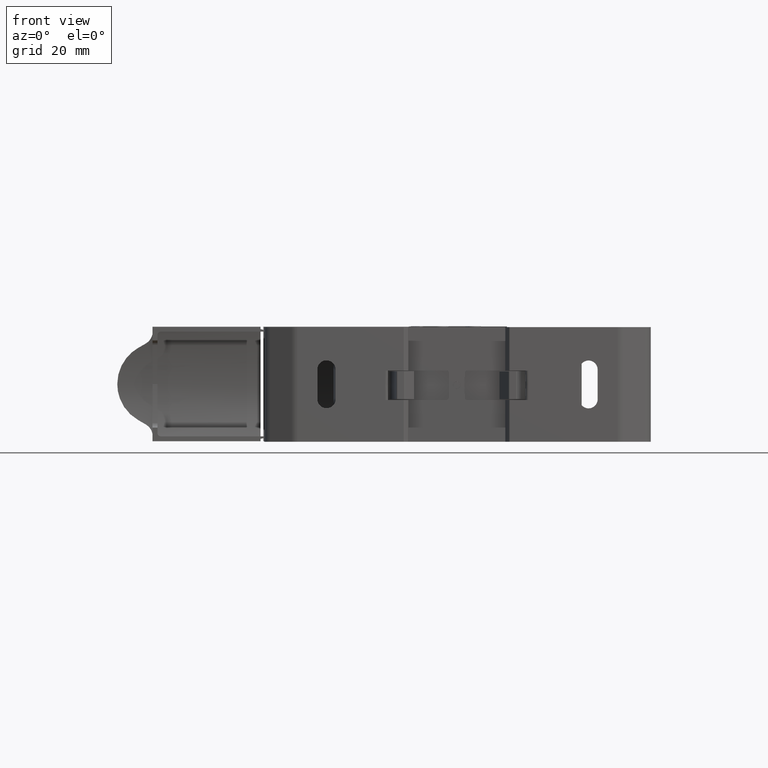
[diagram: clean part render]
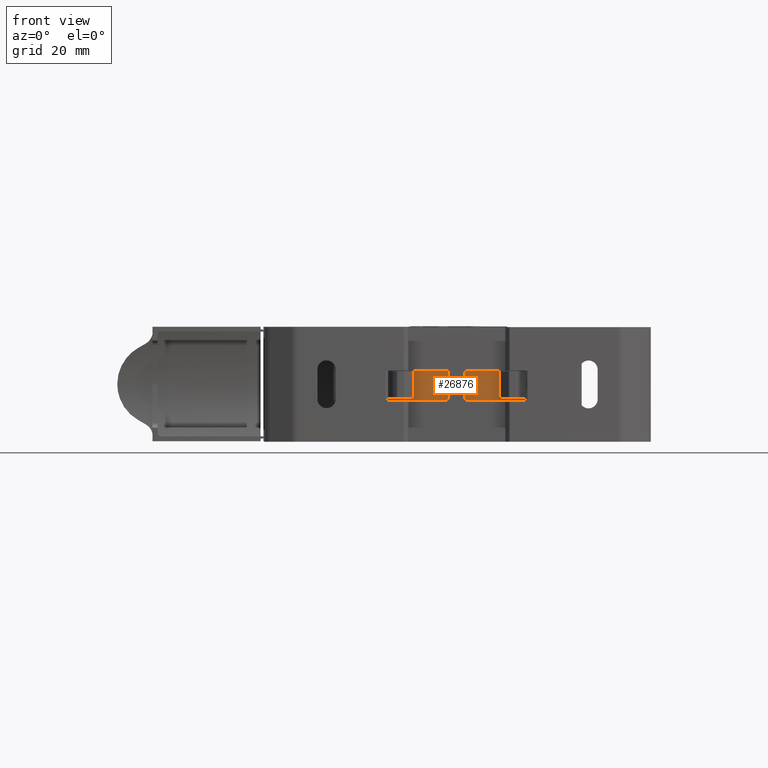
[diagram: same view with one face highlighted and labeled with its STEP entity id]
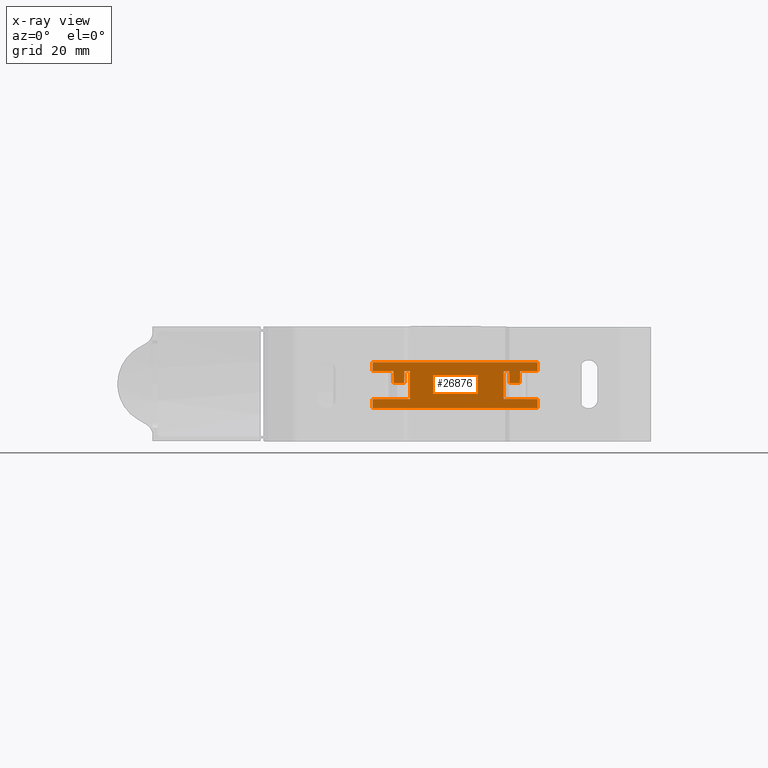
[diagram: x-ray of the same camera — body ghosted, the highlighted face saturated]
A machine part, front view. The second image highlights one B-rep face of the part: STEP entity #26876.
The next image is the same camera in x-ray: the body ghosted, the highlighted face saturated — about 0% of this face is hidden behind the body in this view.
In plain terms, the highlighted planar face has unit normal (0, -1, -0).
Its self-contained STEP definition (entity closure, byte-faithful):
#1604 = VERTEX_POINT ( 'NONE', #40636 ) ;
#1734 = VERTEX_POINT ( 'NONE', #40681 ) ;
#1831 = VERTEX_POINT ( 'NONE', #38840 ) ;
#1846 = VERTEX_POINT ( 'NONE', #38781 ) ;
#2927 = CARTESIAN_POINT ( 'NONE',  ( 16.26856924643300000, 228.7506682762943900, 8.179969599930517500 ) ) ;
#2939 = CARTESIAN_POINT ( 'NONE',  ( -19.65617512938784400, 228.7506682762941900, 13.92996959993122300 ) ) ;
#2982 = CARTESIAN_POINT ( 'NONE',  ( 18.21800889655793700, 228.7506682762939900, 18.17996959993069000 ) ) ;
#3000 = CARTESIAN_POINT ( 'NONE',  ( 22.16419527696145100, 228.7506682762939900, 18.17996959993060500 ) ) ;
#3011 = CARTESIAN_POINT ( 'NONE',  ( -23.52817748384615400, 228.7506682762939900, 18.17996959993131500 ) ) ;
#3013 = CARTESIAN_POINT ( 'NONE',  ( 16.26856924643376300, 228.7506682762940200, 18.17996959993070800 ) ) ;
#3014 = CARTESIAN_POINT ( 'NONE',  ( 18.29219292250292000, 228.7506682762941900, 13.92996959993064700 ) ) ;
#3016 = CARTESIAN_POINT ( 'NONE',  ( -31.04284253209268100, 228.7506682773584700, 18.17996959993134000 ) ) ;
#3018 = CARTESIAN_POINT ( 'NONE',  ( -17.63255145331891800, 228.7506682762940200, 18.17996959993226000 ) ) ;
#3021 = CARTESIAN_POINT ( 'NONE',  ( -31.04284253209253900, 228.7506682762943900, 8.179969599931254700 ) ) ;
#3026 = CARTESIAN_POINT ( 'NONE',  ( -19.58199110344282100, 228.7506682762939900, 18.17996959993172000 ) ) ;
#3038 = CARTESIAN_POINT ( 'NONE',  ( -23.45137653408830000, 228.7506682762941600, 13.92996959993076600 ) ) ;
#3055 = CARTESIAN_POINT ( 'NONE',  ( 22.08739432720364700, 228.7506682762941900, 13.92996959993064700 ) ) ;
#3065 = CARTESIAN_POINT ( 'NONE',  ( -17.63255145331843500, 228.7506682762943900, 8.179969599931128600 ) ) ;
#3076 = CARTESIAN_POINT ( 'NONE',  ( 28.49791972399197700, 228.7506682762939900, 18.17996959993055100 ) ) ;
#3097 = CARTESIAN_POINT ( 'NONE',  ( 28.49791972399212600, 228.7506682762943900, 8.179969599930512200 ) ) ;
#4371 = CARTESIAN_POINT ( 'NONE',  ( -1.221096978668467600, 228.7506682762941400, 14.30798594697086100 ) ) ;
#4372 = CARTESIAN_POINT ( 'NONE',  ( 0.3431198005696134400, 228.7506682762941900, 13.90462363238088600 ) ) ;
#4373 = CARTESIAN_POINT ( 'NONE',  ( 0.4729631892643708600, 228.7506682762941900, 13.65843273461871700 ) ) ;
#4375 = CARTESIAN_POINT ( 'NONE',  ( -1.871086038172491900, 228.7506682762941900, 13.56589729827615400 ) ) ;
#4376 = CARTESIAN_POINT ( 'NONE',  ( -1.182067677433114300, 228.7506682762941900, 14.32577173683824000 ) ) ;
#4380 = CARTESIAN_POINT ( 'NONE',  ( -1.858335821193624900, 228.7506682762941400, 13.60313129309184000 ) ) ;
#4381 = CARTESIAN_POINT ( 'NONE',  ( -0.2964797483298806700, 228.7506682762941600, 14.36922900399450500 ) ) ;
#4382 = CARTESIAN_POINT ( 'NONE',  ( -0.06196310770672947000, 228.7506682762941900, 14.27903633577192900 ) ) ;
#4383 = CARTESIAN_POINT ( 'NONE',  ( 0.08025415614419394200, 228.7506682762941400, 14.18529171394776100 ) ) ;
#4386 = CARTESIAN_POINT ( 'NONE',  ( -1.888852239055909700, 228.7506682762941900, 13.50976900502836900 ) ) ;
#4387 = CARTESIAN_POINT ( 'NONE',  ( -0.9950229166266694200, 228.7506682762941600, 14.40058397765547900 ) ) ;
#4388 = CARTESIAN_POINT ( 'NONE',  ( 0.2627114817000410500, 228.7506682762941600, 14.00313375764734900 ) ) ;
#4389 = CARTESIAN_POINT ( 'NONE',  ( 0.4638109963152742800, 228.7506682762941900, 13.68004621129185400 ) ) ;
#4392 = CARTESIAN_POINT ( 'NONE',  ( 0.5384929431216463100, 228.7506682762941900, 13.49333000499989100 ) ) ;
#4393 = CARTESIAN_POINT ( 'NONE',  ( -0.8402927661405948900, 228.7506682762941400, 14.42983996377573800 ) ) ;
#4394 = CARTESIAN_POINT ( 'NONE',  ( 0.5680088966982654900, 228.7506682762942200, 13.17996959993090700 ) ) ;
#4396 = CARTESIAN_POINT ( 'NONE',  ( -0.3528393434517342900, 228.7506682762942200, 14.38708657665177200 ) ) ;
#4398 = CARTESIAN_POINT ( 'NONE',  ( -1.931991103301858200, 228.7506682762940200, 13.17996959993090700 ) ) ;
#4400 = CARTESIAN_POINT ( 'NONE',  ( -1.160495311957583600, 228.7506682762941600, 14.33490760108445600 ) ) ;
#4402 = CARTESIAN_POINT ( 'NONE',  ( -1.931860994928619600, 228.7506682762941400, 13.25961387534832900 ) ) ;
#4403 = CARTESIAN_POINT ( 'NONE',  ( 0.5677478176789712000, 228.7506682762942500, 13.33995720934909800 ) ) ;
#4404 = CARTESIAN_POINT ( 'NONE',  ( -1.406644996761242000, 228.7506682762941600, 14.20508064301921000 ) ) ;
#4406 = CARTESIAN_POINT ( 'NONE',  ( -1.852122558495944600, 228.7506682762941600, 13.62009928699943900 ) ) ;
#4407 = CARTESIAN_POINT ( 'NONE',  ( -0.4859623499487898400, 228.7506682762941600, 14.41911245360780400 ) ) ;
#4409 = CARTESIAN_POINT ( 'NONE',  ( -1.781057848701346200, 228.7506682762941900, 13.79999758595411000 ) ) ;
#4410 = CARTESIAN_POINT ( 'NONE',  ( -0.6028402718823886500, 228.7506682762941600, 14.43003441800858200 ) ) ;
#4411 = CARTESIAN_POINT ( 'NONE',  ( -0.2418614174297704600, 228.7506682762941900, 14.35010105631988800 ) ) ;
#4412 = CARTESIAN_POINT ( 'NONE',  ( -1.278712044577889000, 228.7506682762941600, 14.27995471172320800 ) ) ;
#4413 = CARTESIAN_POINT ( 'NONE',  ( 0.4460251766157120000, 228.7506682762942500, 13.71907554231088400 ) ) ;
#4414 = CARTESIAN_POINT ( 'NONE',  ( 0.4179939040778264400, 228.7506682762942500, 13.77669064544990900 ) ) ;
#4415 = CARTESIAN_POINT ( 'NONE',  ( -1.505155181595059000, 228.7506682762941100, 14.12467226448527700 ) ) ;
#4417 = CARTESIAN_POINT ( 'NONE',  ( -1.920792835689695700, 228.7506682762942200, 13.37686188028044600 ) ) ;
#4424 = CARTESIAN_POINT ( 'NONE',  ( -1.687313376164900000, 228.7506682762940800, 13.94221470027194200 ) ) ;
#4427 = CARTESIAN_POINT ( 'NONE',  ( -0.2590607120149373600, 228.7506682762941600, 14.35640568959657200 ) ) ;
#8090 = VECTOR ( 'NONE', #32859, 1000.000000000000000 ) ;
#8099 = VECTOR ( 'NONE', #32821, 1000.000000000000000 ) ;
#8106 = VECTOR ( 'NONE', #32773, 1000.000000000000000 ) ;
#8116 = VECTOR ( 'NONE', #32759, 1000.000000000000000 ) ;
#8118 = VECTOR ( 'NONE', #32787, 1000.000000000000000 ) ;
#8138 = VECTOR ( 'NONE', #32721, 1000.000000000000000 ) ;
#8969 = VECTOR ( 'NONE', #17086, 1000.000000000000000 ) ;
#8971 = VECTOR ( 'NONE', #17309, 1000.000000000000000 ) ;
#8988 = VECTOR ( 'NONE', #17156, 1000.000000000000000 ) ;
#8998 = VECTOR ( 'NONE', #17101, 1000.000000000000000 ) ;
#9005 = VECTOR ( 'NONE', #17112, 1000.000000000000000 ) ;
#9010 = VECTOR ( 'NONE', #17083, 999.9999999999998900 ) ;
#9016 = VECTOR ( 'NONE', #17061, 1000.000000000000000 ) ;
#9038 = VECTOR ( 'NONE', #19859, 1000.000000000000200 ) ;
#9049 = VECTOR ( 'NONE', #17467, 1000.000000000000000 ) ;
#9052 = VECTOR ( 'NONE', #17435, 1000.000000000000000 ) ;
#9063 = VECTOR ( 'NONE', #19846, 1000.000000000000000 ) ;
#9065 = VECTOR ( 'NONE', #17450, 1000.000000000000000 ) ;
#9070 = VECTOR ( 'NONE', #17447, 1000.000000000000000 ) ;
#9090 = VECTOR ( 'NONE', #17446, 1000.000000000000000 ) ;
#10574 = AXIS2_PLACEMENT_3D ( 'NONE', #39140, #39242, #39178 ) ;
#10987 = CARTESIAN_POINT ( 'NONE',  ( -1.931991103301858200, 228.7506682762940200, 13.17996959993090700 ) ) ;
#11032 = CARTESIAN_POINT ( 'NONE',  ( 0.5680088966982654900, 228.7506682762942200, 13.17996959993090700 ) ) ;
#11250 = CARTESIAN_POINT ( 'NONE',  ( -1.810007383220184200, 228.7506682762942800, 12.64086365755430000 ) ) ;
#12156 = EDGE_CURVE ( 'NONE', #1846, #36692, #32665, .T. ) ;
#12175 = EDGE_CURVE ( 'NONE', #1604, #1831, #32723, .T. ) ;
#12187 = EDGE_CURVE ( 'NONE', #1831, #36618, #32785, .T. ) ;
#12192 = EDGE_CURVE ( 'NONE', #1734, #1846, #32806, .T. ) ;
#12193 = EDGE_CURVE ( 'NONE', #36587, #1734, #32807, .T. ) ;
#12200 = EDGE_CURVE ( 'NONE', #36725, #1604, #32833, .T. ) ;
#14528 = CARTESIAN_POINT ( 'NONE',  ( -1.707102007175032900, 228.7506682762942800, 12.45531556748791300 ) ) ;
#14902 = CARTESIAN_POINT ( 'NONE',  ( -1.781976110682792700, 228.7506682762942500, 12.58324855441715200 ) ) ;
#15698 = EDGE_LOOP ( 'NONE', ( #23613, #23676, #23615, #23674, #23625, #23678, #23634, #23517, #23623, #23641, #23583, #23590, #23597, #23643, #23594, #23702, #23767, #23783, #23720, #23770 ) ) ;
#15760 = EDGE_LOOP ( 'NONE', ( #23671, #23599 ) ) ;
#16551 = CARTESIAN_POINT ( 'NONE',  ( -1.067502458270980200, 228.7506682762942200, 11.99071019586637700 ) ) ;
#16736 = CARTESIAN_POINT ( 'NONE',  ( -1.104921494587117700, 228.7506682762942500, 12.00353351026471300 ) ) ;
#16848 = CARTESIAN_POINT ( 'NONE',  ( -1.122120789172634100, 228.7506682762942500, 12.00983814354150200 ) ) ;
#17021 = LINE ( 'NONE', #17029, #9005 ) ;
#17029 = CARTESIAN_POINT ( 'NONE',  ( 28.49791972399113100, 228.7506682762940200, 18.17996959993070800 ) ) ;
#17046 = LINE ( 'NONE', #17082, #8969 ) ;
#17050 = CARTESIAN_POINT ( 'NONE',  ( 28.49791972399113100, 228.7506682762943900, 8.179969599930517500 ) ) ;
#17061 = DIRECTION ( 'NONE',  ( -1.000000000000000000, -4.724597265859181000E-028, -1.597809914106125200E-041 ) ) ;
#17067 = LINE ( 'NONE', #17050, #9016 ) ;
#17082 = CARTESIAN_POINT ( 'NONE',  ( 28.49791972399113100, 228.7506682762940200, 18.17996959993060800 ) ) ;
#17083 = DIRECTION ( 'NONE',  ( 0.01806786188013629800, 3.917794570567881800E-014, -0.9998367628603583900 ) ) ;
#17086 = DIRECTION ( 'NONE',  ( 1.000000000000000000, 4.724597265859181000E-028, 1.597809914106125200E-041 ) ) ;
#17087 = CARTESIAN_POINT ( 'NONE',  ( 18.21800889655799000, 228.7506682762940200, 18.17996959993069300 ) ) ;
#17092 = LINE ( 'NONE', #17087, #8998 ) ;
#17101 = DIRECTION ( 'NONE',  ( 0.01745240643729393400, 3.917837408050617000E-014, -0.9998476951563910500 ) ) ;
#17110 = CARTESIAN_POINT ( 'NONE',  ( -1.302019098905979900, 228.7506682762942500, 12.08090286409308500 ) ) ;
#17111 = CARTESIAN_POINT ( 'NONE',  ( -1.444236362745652900, 228.7506682762942500, 12.17464748590604800 ) ) ;
#17112 = DIRECTION ( 'NONE',  ( 1.000000000000000000, 4.724597265859181000E-028, 1.597809914106125200E-041 ) ) ;
#17113 = LINE ( 'NONE', #17117, #9010 ) ;
#17117 = CARTESIAN_POINT ( 'NONE',  ( -23.52817748384615000, 228.7506682762940200, 18.17996959993130400 ) ) ;
#17145 = CARTESIAN_POINT ( 'NONE',  ( -17.63255145331898500, 228.7506682762939600, 20.17996959993119400 ) ) ;
#17156 = DIRECTION ( 'NONE',  ( -1.385003223219882200E-014, 0.0000000000000000000, -1.000000000000000000 ) ) ;
#17175 = LINE ( 'NONE', #17145, #8988 ) ;
#17309 = DIRECTION ( 'NONE',  ( 1.000000000000000000, 4.724597265859181000E-028, 1.597809914106125200E-041 ) ) ;
#17318 = CARTESIAN_POINT ( 'NONE',  ( 28.49791972399113100, 228.7506682762940200, 18.17996959993226000 ) ) ;
#17335 = LINE ( 'NONE', #17318, #8971 ) ;
#17367 = CARTESIAN_POINT ( 'NONE',  ( -1.626693688304667900, 228.7506682762942200, 12.35680544221845700 ) ) ;
#17408 = LINE ( 'NONE', #17433, #9052 ) ;
#17429 = CARTESIAN_POINT ( 'NONE',  ( 16.26856924643388400, 228.7506682762939600, 20.17996959993073200 ) ) ;
#17433 = CARTESIAN_POINT ( 'NONE',  ( 28.49791972399113100, 228.7506682762941900, 13.92996959993064700 ) ) ;
#17435 = DIRECTION ( 'NONE',  ( 1.000000000000000000, 4.724597265859181000E-028, 1.597809914106125200E-041 ) ) ;
#17436 = LINE ( 'NONE', #17429, #9090 ) ;
#17446 = DIRECTION ( 'NONE',  ( 1.385003223219882200E-014, -0.0000000000000000000, 1.000000000000000000 ) ) ;
#17447 = DIRECTION ( 'NONE',  ( 0.01745240643730201400, -3.917837408049682400E-014, 0.9998476951563909400 ) ) ;
#17450 = DIRECTION ( 'NONE',  ( -1.000000000000000000, -4.724597265859181000E-028, -1.597809914106125200E-041 ) ) ;
#17465 = CARTESIAN_POINT ( 'NONE',  ( 28.49791972399113100, 228.7506682762941900, 13.92996959993123000 ) ) ;
#17467 = DIRECTION ( 'NONE',  ( 1.000000000000000000, 4.724597265859181000E-028, 1.597809914106125200E-041 ) ) ;
#17472 = CARTESIAN_POINT ( 'NONE',  ( 28.49791972399113100, 228.7506682762943900, 8.179969599931128600 ) ) ;
#17479 = LINE ( 'NONE', #17496, #9070 ) ;
#17482 = LINE ( 'NONE', #17472, #9065 ) ;
#17485 = LINE ( 'NONE', #17465, #9049 ) ;
#17496 = CARTESIAN_POINT ( 'NONE',  ( -19.65617512938784400, 228.7506682762941900, 13.92996959993120100 ) ) ;
#17557 = CARTESIAN_POINT ( 'NONE',  ( 0.4943536145900528900, 228.7506682762941900, 12.75680790677061400 ) ) ;
#17559 = CARTESIAN_POINT ( 'NONE',  ( 0.4881403518923859700, 228.7506682762942500, 12.73983991286280600 ) ) ;
#17563 = CARTESIAN_POINT ( 'NONE',  ( 0.4170756420976812800, 228.7506682762942500, 12.55994161390468400 ) ) ;
#17565 = CARTESIAN_POINT ( 'NONE',  ( 0.3233311695701505700, 228.7506682762942800, 12.41772449959578700 ) ) ;
#17571 = CARTESIAN_POINT ( 'NONE',  ( 0.04266279014999781200, 228.7506682762941900, 12.15485855683753200 ) ) ;
#17572 = CARTESIAN_POINT ( 'NONE',  ( -0.08527016203143059100, 228.7506682762943100, 12.07998448813479400 ) ) ;
#17573 = CARTESIAN_POINT ( 'NONE',  ( 0.1411729749871150100, 228.7506682762943100, 12.23526693537367300 ) ) ;
#17575 = CARTESIAN_POINT ( 'NONE',  ( 0.5568106290861023500, 228.7506682762942800, 12.98307731958366600 ) ) ;
#17577 = CARTESIAN_POINT ( 'NONE',  ( 0.5248700324523281100, 228.7506682762942800, 12.85017019483517400 ) ) ;
#17579 = CARTESIAN_POINT ( 'NONE',  ( -0.1428852279387865800, 228.7506682762943100, 12.05195325288852700 ) ) ;
#17580 = CARTESIAN_POINT ( 'NONE',  ( -0.1819145291724905400, 228.7506682762942800, 12.03416746302224500 ) ) ;
#17581 = CARTESIAN_POINT ( 'NONE',  ( 0.5678787883250274700, 228.7506682762941600, 13.10032532451478800 ) ) ;
#17588 = CARTESIAN_POINT ( 'NONE',  ( -0.2034868946459584300, 228.7506682762942800, 12.02503159877712400 ) ) ;
#17589 = CARTESIAN_POINT ( 'NONE',  ( -0.5236894404693140900, 228.7506682762942800, 11.93009923608821400 ) ) ;
#17590 = CARTESIAN_POINT ( 'NONE',  ( -0.7611419347179719800, 228.7506682762942800, 11.92990478185215700 ) ) ;
#17595 = CARTESIAN_POINT ( 'NONE',  ( -0.3689592899768828200, 228.7506682762942200, 11.95935522220851500 ) ) ;
#17597 = CARTESIAN_POINT ( 'NONE',  ( 0.5071038315689154800, 228.7506682762942200, 12.79404190158678400 ) ) ;
#17598 = CARTESIAN_POINT ( 'NONE',  ( 0.5680088966982654900, 228.7506682762942200, 13.17996959993090700 ) ) ;
#17599 = CARTESIAN_POINT ( 'NONE',  ( -0.8780198566491800300, 228.7506682762943100, 11.94082674625214400 ) ) ;
#17600 = CARTESIAN_POINT ( 'NONE',  ( -1.011142863147638500, 228.7506682762942500, 11.97285262320863100 ) ) ;
#18529 = VERTEX_POINT ( 'NONE', #10987 ) ;
#18577 = VERTEX_POINT ( 'NONE', #11032 ) ;
#19299 = B_SPLINE_CURVE_WITH_KNOTS ( 'NONE', 3,
 ( #17598, #17581, #17575, #17577, #17597, #17557, #17559, #17563, #17565, #17573, #17571, #17572, #17579, #17580, #17588, #17595, #17589, #17590, #17599, #17600, #16551, #16736, #16848, #17110, #17111, #17367, #14528, #14902, #11250, #19854, #19818, #19819, #19811, #19817 ),
 .UNSPECIFIED., .F., .F.,
 ( 4, 1, 1, 2, 2, 2, 1, 1, 2, 2, 2, 1, 1, 2, 2, 2, 1, 1, 2, 2, 4 ),
 ( 0.0000000000000000000, 0.06249999999999791800, 0.09374999999999757100, 0.1093749999999980600, 0.1249999999999985600, 0.2500000000000025500, 0.3125000000000045000, 0.3437500000000051600, 0.3593750000000054400, 0.3750000000000057700, 0.5000000000000057700, 0.5625000000000057700, 0.5937500000000056600, 0.6093750000000052200, 0.6250000000000047700, 0.7500000000000003300, 0.8124999999999980000, 0.8437499999999974500, 0.8593749999999971100, 0.8749999999999967800, 1.000000000000000000 ),
 .UNSPECIFIED. ) ;
#19647 = B_SPLINE_CURVE_WITH_KNOTS ( 'NONE', 3,
 ( #4398, #4402, #4417, #4386, #4375, #4380, #4406, #4409, #4424, #4415, #4404, #4412, #4371, #4376, #4400, #4387, #4393, #4410, #4407, #4396, #4381, #4427, #4411, #4382, #4383, #4388, #4372, #4414, #4413, #4389, #4373, #4392, #4403, #4394 ),
 .UNSPECIFIED., .F., .F.,
 ( 4, 1, 1, 2, 2, 2, 1, 1, 2, 2, 2, 1, 1, 2, 2, 2, 1, 1, 2, 2, 4 ),
 ( 0.0000000000000000000, 0.06249999999999841800, 0.09374999999999764100, 0.1093749999999972200, 0.1249999999999968200, 0.2499999999999996700, 0.3125000000000010500, 0.3437500000000014400, 0.3593750000000015500, 0.3750000000000016700, 0.5000000000000017800, 0.5625000000000017800, 0.5937500000000018900, 0.6093750000000018900, 0.6250000000000018900, 0.7500000000000002200, 0.8124999999999993300, 0.8437499999999994400, 0.8593749999999994400, 0.8749999999999994400, 1.000000000000000000 ),
 .UNSPECIFIED. ) ;
#19811 = CARTESIAN_POINT ( 'NONE',  ( -1.931730024282553900, 228.7506682762942500, 13.01998199051023300 ) ) ;
#19817 = CARTESIAN_POINT ( 'NONE',  ( -1.931991103301858200, 228.7506682762940200, 13.17996959993090700 ) ) ;
#19818 = CARTESIAN_POINT ( 'NONE',  ( -1.836945395867963800, 228.7506682762942800, 12.70150646524340500 ) ) ;
#19819 = CARTESIAN_POINT ( 'NONE',  ( -1.902475149725228400, 228.7506682762942800, 12.86660919485943200 ) ) ;
#19832 = CARTESIAN_POINT ( 'NONE',  ( 28.49791972399113100, 228.7506682762940200, 18.17996959993134400 ) ) ;
#19833 = CARTESIAN_POINT ( 'NONE',  ( 22.08739432720365800, 228.7506682762941900, 13.92996959993064700 ) ) ;
#19846 = DIRECTION ( 'NONE',  ( 1.000000000000000000, 4.724597265859181000E-028, 1.597809914106125200E-041 ) ) ;
#19847 = LINE ( 'NONE', #19833, #9038 ) ;
#19854 = CARTESIAN_POINT ( 'NONE',  ( -1.827793202919352200, 228.7506682762942500, 12.67989298857182900 ) ) ;
#19859 = DIRECTION ( 'NONE',  ( 0.01806786188010168000, -3.917794570567986500E-014, 0.9998367628603588300 ) ) ;
#19860 = LINE ( 'NONE', #19832, #9063 ) ;
#22905 = EDGE_CURVE ( 'NONE', #36692, #36554, #17067, .T. ) ;
#22907 = EDGE_CURVE ( 'NONE', #36633, #36607, #17021, .T. ) ;
#22916 = EDGE_CURVE ( 'NONE', #36639, #36725, #17046, .T. ) ;
#22917 = EDGE_CURVE ( 'NONE', #36607, #36612, #17092, .T. ) ;
#22921 = EDGE_CURVE ( 'NONE', #36637, #36614, #17113, .T. ) ;
#22925 = EDGE_CURVE ( 'NONE', #36643, #36713, #17175, .T. ) ;
#22946 = EDGE_CURVE ( 'NONE', #36647, #36643, #17335, .T. ) ;
#22964 = EDGE_CURVE ( 'NONE', #36612, #36739, #17408, .T. ) ;
#22969 = EDGE_CURVE ( 'NONE', #36554, #36633, #17436, .T. ) ;
#22976 = EDGE_CURVE ( 'NONE', #36713, #36587, #17482, .T. ) ;
#22977 = EDGE_CURVE ( 'NONE', #36614, #36550, #17485, .T. ) ;
#22982 = EDGE_CURVE ( 'NONE', #36550, #36647, #17479, .T. ) ;
#23010 = EDGE_CURVE ( 'NONE', #18577, #18529, #19299, .T. ) ;
#23018 = EDGE_CURVE ( 'NONE', #36739, #36639, #19847, .T. ) ;
#23019 = EDGE_CURVE ( 'NONE', #36618, #36637, #19860, .T. ) ;
#23517 = ORIENTED_EDGE ( 'NONE', *, *, #12193, .T. ) ;
#23583 = ORIENTED_EDGE ( 'NONE', *, *, #22905, .T. ) ;
#23590 = ORIENTED_EDGE ( 'NONE', *, *, #22969, .T. ) ;
#23594 = ORIENTED_EDGE ( 'NONE', *, *, #22964, .T. ) ;
#23597 = ORIENTED_EDGE ( 'NONE', *, *, #22907, .T. ) ;
#23599 = ORIENTED_EDGE ( 'NONE', *, *, #23010, .T. ) ;
#23613 = ORIENTED_EDGE ( 'NONE', *, *, #23019, .T. ) ;
#23615 = ORIENTED_EDGE ( 'NONE', *, *, #22977, .T. ) ;
#23623 = ORIENTED_EDGE ( 'NONE', *, *, #12192, .T. ) ;
#23625 = ORIENTED_EDGE ( 'NONE', *, *, #22946, .T. ) ;
#23634 = ORIENTED_EDGE ( 'NONE', *, *, #22976, .T. ) ;
#23641 = ORIENTED_EDGE ( 'NONE', *, *, #12156, .T. ) ;
#23643 = ORIENTED_EDGE ( 'NONE', *, *, #22917, .T. ) ;
#23671 = ORIENTED_EDGE ( 'NONE', *, *, #41947, .T. ) ;
#23674 = ORIENTED_EDGE ( 'NONE', *, *, #22982, .T. ) ;
#23676 = ORIENTED_EDGE ( 'NONE', *, *, #22921, .T. ) ;
#23678 = ORIENTED_EDGE ( 'NONE', *, *, #22925, .T. ) ;
#23702 = ORIENTED_EDGE ( 'NONE', *, *, #23018, .T. ) ;
#23720 = ORIENTED_EDGE ( 'NONE', *, *, #12175, .T. ) ;
#23767 = ORIENTED_EDGE ( 'NONE', *, *, #22916, .T. ) ;
#23770 = ORIENTED_EDGE ( 'NONE', *, *, #12187, .T. ) ;
#23783 = ORIENTED_EDGE ( 'NONE', *, *, #12200, .T. ) ;
#26876 = ADVANCED_FACE ( 'NONE', ( #39253, #39176 ), #39155, .T. ) ;
#32665 = LINE ( 'NONE', #32715, #8138 ) ;
#32715 = CARTESIAN_POINT ( 'NONE',  ( 28.49791972399103600, 228.7506682762943900, 85.77996959995533600 ) ) ;
#32721 = DIRECTION ( 'NONE',  ( -1.396592535537252100E-014, -0.0000000000000000000, 1.000000000000000000 ) ) ;
#32723 = LINE ( 'NONE', #32738, #8116 ) ;
#32738 = CARTESIAN_POINT ( 'NONE',  ( 46.26791074929590100, 228.7506682810836500, 21.47996959976172700 ) ) ;
#32759 = DIRECTION ( 'NONE',  ( -1.000000000000000000, -1.066005509453499600E-015, 1.860719538139458600E-017 ) ) ;
#32773 = DIRECTION ( 'NONE',  ( 1.396592535537252100E-014, -0.0000000000000000000, -1.000000000000000000 ) ) ;
#32775 = CARTESIAN_POINT ( 'NONE',  ( -31.04284253209361600, 228.7506682762943900, 85.77996959995449800 ) ) ;
#32785 = LINE ( 'NONE', #32801, #8106 ) ;
#32786 = CARTESIAN_POINT ( 'NONE',  ( -42.93198438356954900, 228.7506682762943600, 4.879969599944924000 ) ) ;
#32787 = DIRECTION ( 'NONE',  ( 1.396592535537252100E-014, -0.0000000000000000000, -1.000000000000000000 ) ) ;
#32801 = CARTESIAN_POINT ( 'NONE',  ( -31.04284253209361600, 228.7506682794873400, 85.77996959995449800 ) ) ;
#32806 = LINE ( 'NONE', #32786, #8099 ) ;
#32807 = LINE ( 'NONE', #32775, #8118 ) ;
#32821 = DIRECTION ( 'NONE',  ( 1.000000000000000000, 0.0000000000000000000, 0.0000000000000000000 ) ) ;
#32833 = LINE ( 'NONE', #32869, #8090 ) ;
#32859 = DIRECTION ( 'NONE',  ( -1.396592535537252100E-014, -0.0000000000000000000, 1.000000000000000000 ) ) ;
#32869 = CARTESIAN_POINT ( 'NONE',  ( 28.49791972399103600, 228.7506682762939900, 85.77996959995533600 ) ) ;
#36550 = VERTEX_POINT ( 'NONE', #2939 ) ;
#36554 = VERTEX_POINT ( 'NONE', #2927 ) ;
#36587 = VERTEX_POINT ( 'NONE', #3021 ) ;
#36607 = VERTEX_POINT ( 'NONE', #2982 ) ;
#36612 = VERTEX_POINT ( 'NONE', #3014 ) ;
#36614 = VERTEX_POINT ( 'NONE', #3038 ) ;
#36618 = VERTEX_POINT ( 'NONE', #3016 ) ;
#36633 = VERTEX_POINT ( 'NONE', #3013 ) ;
#36637 = VERTEX_POINT ( 'NONE', #3011 ) ;
#36639 = VERTEX_POINT ( 'NONE', #3000 ) ;
#36643 = VERTEX_POINT ( 'NONE', #3018 ) ;
#36647 = VERTEX_POINT ( 'NONE', #3026 ) ;
#36692 = VERTEX_POINT ( 'NONE', #3097 ) ;
#36713 = VERTEX_POINT ( 'NONE', #3065 ) ;
#36725 = VERTEX_POINT ( 'NONE', #3076 ) ;
#36739 = VERTEX_POINT ( 'NONE', #3055 ) ;
#38781 = CARTESIAN_POINT ( 'NONE',  ( 28.49791972399216500, 228.7506682762943900, 4.879969599944924900 ) ) ;
#38840 = CARTESIAN_POINT ( 'NONE',  ( -31.04284253209271700, 228.7506682805514800, 21.47996959976172700 ) ) ;
#39140 = CARTESIAN_POINT ( 'NONE',  ( 28.49791972399113100, 228.7506682762914900, 93.97321556382243600 ) ) ;
#39155 = PLANE ( 'NONE',  #10574 ) ;
#39176 = FACE_OUTER_BOUND ( 'NONE', #15698, .T. ) ;
#39178 = DIRECTION ( 'NONE',  ( 0.0000000000000000000, 3.381896538890620300E-014, -1.000000000000000000 ) ) ;
#39242 = DIRECTION ( 'NONE',  ( 4.724597265859181000E-028, -1.000000000000000000, -3.381896538890620300E-014 ) ) ;
#39253 = FACE_BOUND ( 'NONE', #15760, .T. ) ;
#40636 = CARTESIAN_POINT ( 'NONE',  ( 28.49791972399197000, 228.7506682794870900, 21.47996953878607600 ) ) ;
#40681 = CARTESIAN_POINT ( 'NONE',  ( -31.04284253209252100, 228.7506682762943900, 4.879969599944924900 ) ) ;
#41947 = EDGE_CURVE ( 'NONE', #18529, #18577, #19647, .T. ) ;